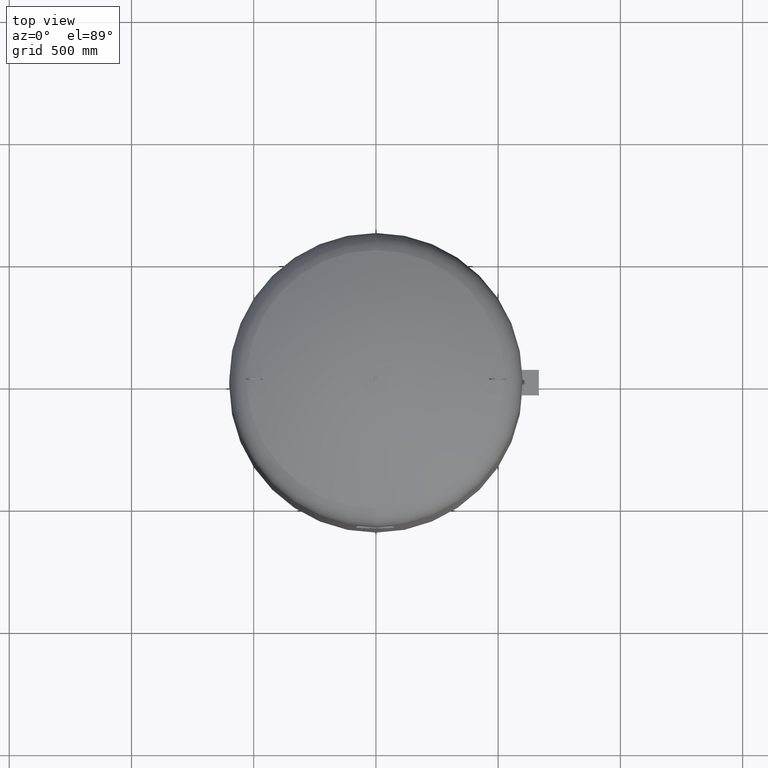
[diagram: clean part render]
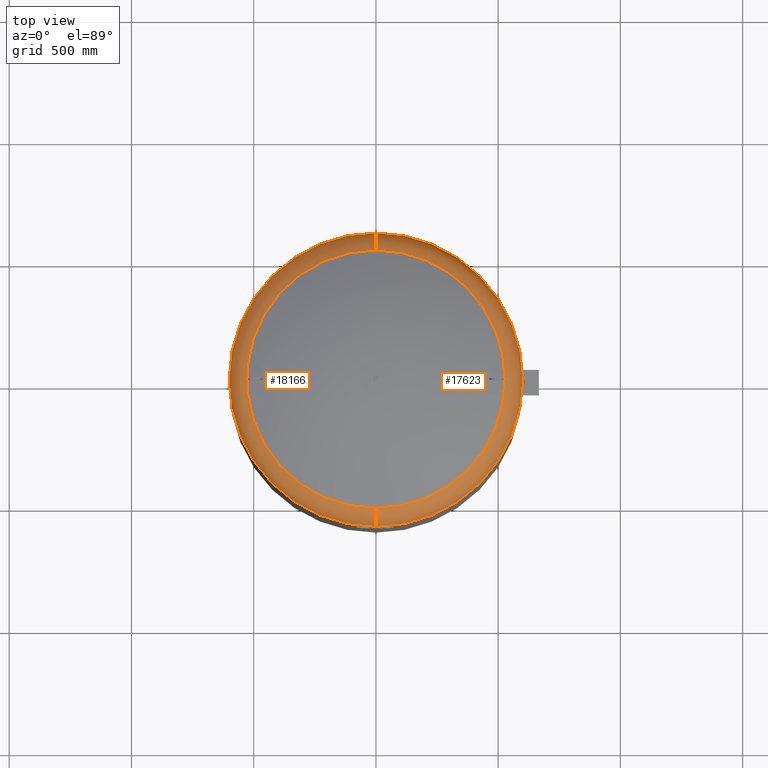
[diagram: same view with one multi-face feature highlighted, each face labeled with its STEP entity id]
A machine part, top view. The highlighted faces form ONE feature: a constant-radius fillet chain: 2 tangent blend faces with common blend radius 127 mm. The faces share edges in the B-rep.
Their STEP definitions:
[1] entity #17623 (Torus):
#17528=CARTESIAN_POINT('',(600.0,-4.336858E-014,2162.912457433727900));
#17529=VERTEX_POINT('',#17528);
#17553=CARTESIAN_POINT('',(1.156183E-013,600.0,2162.912457433727500));
#17554=VERTEX_POINT('',#17553);
#17562=CARTESIAN_POINT('',(6.604942E-015,-4.336858E-014,2162.912457433727500));
#17563=DIRECTION('',(0.0,0.0,-1.0));
#17564=DIRECTION('',(1.0,0.0,0.0));
#17565=AXIS2_PLACEMENT_3D('',#17562,#17563,#17564);
#17566=CIRCLE('',#17565,600.0);
#17567=EDGE_CURVE('',#17554,#17529,#17566,.T.);
#17572=CARTESIAN_POINT('',(4.214189E-014,-4.336858E-014,2162.912457433727500));
#17573=DIRECTION('',(2.797667E-017,-1.836970E-016,-1.0));
#17574=DIRECTION('',(0.0,-1.0,0.0));
#17575=AXIS2_PLACEMENT_3D('',#17572,#17573,#17574);
#17576=TOROIDAL_SURFACE('',#17575,472.999999999999890,127.000000000000010);
#17577=CARTESIAN_POINT('',(4.214189E-014,-600.0,2162.912457433727500));
#17578=VERTEX_POINT('',#17577);
#17579=CARTESIAN_POINT('',(3.894773E-014,-528.621296296296240,2277.084570483804800));
#17580=VERTEX_POINT('',#17579);
#17581=CARTESIAN_POINT('',(4.214189E-014,-472.999999999999940,2162.912457433727500));
#17582=DIRECTION('',(-1.0,0.0,0.0));
#17583=DIRECTION('',(0.0,-1.0,0.0));
#17584=AXIS2_PLACEMENT_3D('',#17581,#17582,#17583);
#17585=CIRCLE('',#17584,127.000000000000010);
#17586=EDGE_CURVE('',#17578,#17580,#17585,.T.);
#17587=ORIENTED_EDGE('',*,*,#17586,.F.);
#17588=CARTESIAN_POINT('',(6.604942E-015,-4.336858E-014,2162.912457433727500));
#17589=DIRECTION('',(0.0,0.0,-1.0));
#17590=DIRECTION('',(1.0,0.0,0.0));
#17591=AXIS2_PLACEMENT_3D('',#17588,#17589,#17590);
#17592=CIRCLE('',#17591,600.0);
#17593=EDGE_CURVE('',#17529,#17578,#17592,.T.);
#17594=ORIENTED_EDGE('',*,*,#17593,.F.);
#17595=ORIENTED_EDGE('',*,*,#17567,.F.);
#17596=CARTESIAN_POINT('',(1.036830E-013,528.621296296296240,2277.084570483804800));
#17597=VERTEX_POINT('',#17596);
#17598=CARTESIAN_POINT('',(1.000658E-013,472.999999999999830,2162.912457433727500));
#17599=DIRECTION('',(1.0,0.0,0.0));
#17600=DIRECTION('',(0.0,1.0,0.0));
#17601=AXIS2_PLACEMENT_3D('',#17598,#17599,#17600);
#17602=CIRCLE('',#17601,127.000000000000010);
#17603=EDGE_CURVE('',#17554,#17597,#17602,.T.);
#17604=ORIENTED_EDGE('',*,*,#17603,.T.);
#17605=CARTESIAN_POINT('',(528.621296296296240,-2.239550E-014,2277.084570483804800));
#17606=VERTEX_POINT('',#17605);
#17607=CARTESIAN_POINT('',(3.410787E-015,-2.239550E-014,2277.084570483804800));
#17608=DIRECTION('',(0.0,0.0,-1.0));
#17609=DIRECTION('',(1.0,0.0,0.0));
#17610=AXIS2_PLACEMENT_3D('',#17607,#17608,#17609);
#17611=CIRCLE('',#17610,528.621296296296240);
#17612=EDGE_CURVE('',#17597,#17606,#17611,.T.);
#17613=ORIENTED_EDGE('',*,*,#17612,.T.);
#17614=CARTESIAN_POINT('',(3.410787E-015,-2.239550E-014,2277.084570483804800));
#17615=DIRECTION('',(0.0,0.0,-1.0));
#17616=DIRECTION('',(1.0,0.0,0.0));
#17617=AXIS2_PLACEMENT_3D('',#17614,#17615,#17616);
#17618=CIRCLE('',#17617,528.621296296296240);
#17619=EDGE_CURVE('',#17606,#17580,#17618,.T.);
#17620=ORIENTED_EDGE('',*,*,#17619,.T.);
#17621=EDGE_LOOP('',(#17587,#17594,#17595,#17604,#17613,#17620));
#17622=FACE_OUTER_BOUND('',#17621,.T.);
#17623=ADVANCED_FACE('',(#17622),#17576,.T.);
[2] entity #18166 (Torus):
#17545=CARTESIAN_POINT('',(-599.999999999999890,3.010780E-014,2162.912457433727500));
#17546=VERTEX_POINT('',#17545);
#17553=CARTESIAN_POINT('',(1.156183E-013,600.0,2162.912457433727500));
#17554=VERTEX_POINT('',#17553);
#17555=CARTESIAN_POINT('',(6.604942E-015,-4.336858E-014,2162.912457433727500));
#17556=DIRECTION('',(0.0,0.0,-1.0));
#17557=DIRECTION('',(1.0,0.0,0.0));
#17558=AXIS2_PLACEMENT_3D('',#17555,#17556,#17557);
#17559=CIRCLE('',#17558,600.0);
#17560=EDGE_CURVE('',#17546,#17554,#17559,.T.);
#17577=CARTESIAN_POINT('',(4.214189E-014,-600.0,2162.912457433727500));
#17578=VERTEX_POINT('',#17577);
#17579=CARTESIAN_POINT('',(3.894773E-014,-528.621296296296240,2277.084570483804800));
#17580=VERTEX_POINT('',#17579);
#17581=CARTESIAN_POINT('',(4.214189E-014,-472.999999999999940,2162.912457433727500));
#17582=DIRECTION('',(-1.0,0.0,0.0));
#17583=DIRECTION('',(0.0,-1.0,0.0));
#17584=AXIS2_PLACEMENT_3D('',#17581,#17582,#17583);
#17585=CIRCLE('',#17584,127.000000000000010);
#17586=EDGE_CURVE('',#17578,#17580,#17585,.T.);
#17596=CARTESIAN_POINT('',(1.036830E-013,528.621296296296240,2277.084570483804800));
#17597=VERTEX_POINT('',#17596);
#17598=CARTESIAN_POINT('',(1.000658E-013,472.999999999999830,2162.912457433727500));
#17599=DIRECTION('',(1.0,0.0,0.0));
#17600=DIRECTION('',(0.0,1.0,0.0));
#17601=AXIS2_PLACEMENT_3D('',#17598,#17599,#17600);
#17602=CIRCLE('',#17601,127.000000000000010);
#17603=EDGE_CURVE('',#17554,#17597,#17602,.T.);
#18138=CARTESIAN_POINT('',(3.410787E-015,-2.239550E-014,2277.084570483804800));
#18139=DIRECTION('',(0.0,0.0,-1.0));
#18140=DIRECTION('',(1.0,0.0,0.0));
#18141=AXIS2_PLACEMENT_3D('',#18138,#18139,#18140);
#18142=CIRCLE('',#18141,528.621296296296240);
#18143=EDGE_CURVE('',#17580,#17597,#18142,.T.);
#18148=CARTESIAN_POINT('',(4.214189E-014,-4.336858E-014,2162.912457433727500));
#18149=DIRECTION('',(2.797667E-017,-1.836970E-016,-1.0));
#18150=DIRECTION('',(0.0,-1.0,0.0));
#18151=AXIS2_PLACEMENT_3D('',#18148,#18149,#18150);
#18152=TOROIDAL_SURFACE('',#18151,472.999999999999890,127.000000000000010);
#18153=ORIENTED_EDGE('',*,*,#17586,.T.);
#18154=ORIENTED_EDGE('',*,*,#18143,.T.);
#18155=ORIENTED_EDGE('',*,*,#17603,.F.);
#18156=ORIENTED_EDGE('',*,*,#17560,.F.);
#18157=CARTESIAN_POINT('',(6.604942E-015,-4.336858E-014,2162.912457433727500));
#18158=DIRECTION('',(0.0,0.0,-1.0));
#18159=DIRECTION('',(1.0,0.0,0.0));
#18160=AXIS2_PLACEMENT_3D('',#18157,#18158,#18159);
#18161=CIRCLE('',#18160,600.0);
#18162=EDGE_CURVE('',#17578,#17546,#18161,.T.);
#18163=ORIENTED_EDGE('',*,*,#18162,.F.);
#18164=EDGE_LOOP('',(#18153,#18154,#18155,#18156,#18163));
#18165=FACE_OUTER_BOUND('',#18164,.T.);
#18166=ADVANCED_FACE('',(#18165),#18152,.T.);